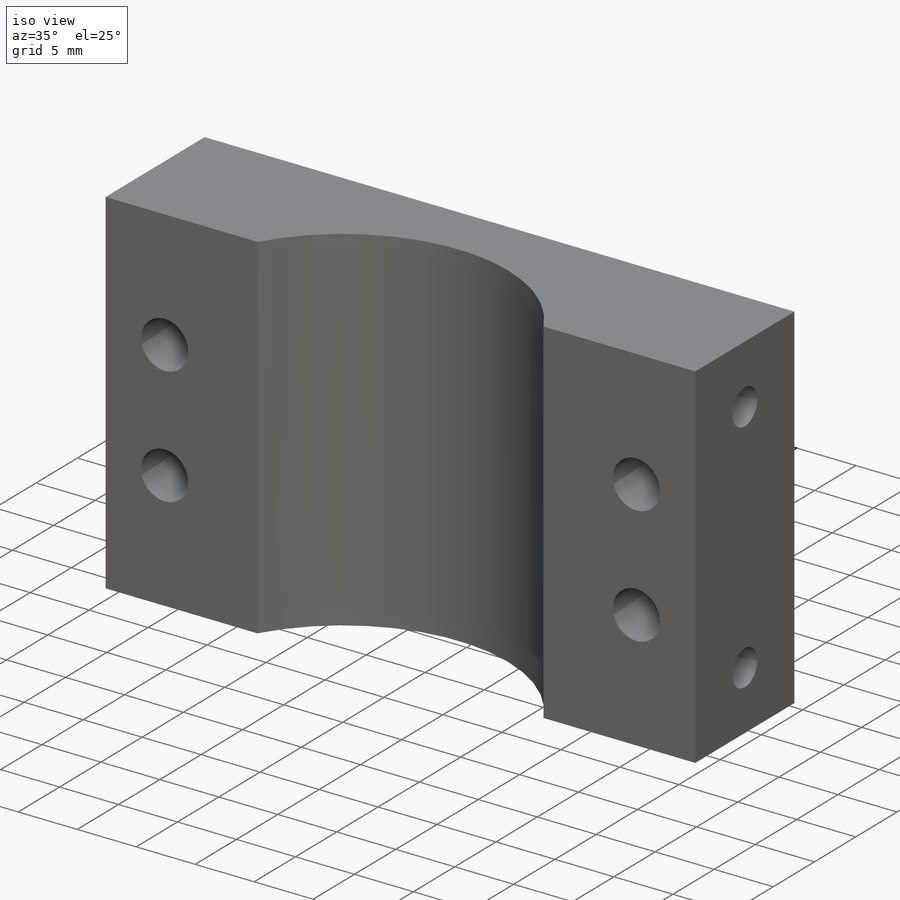
[diagram: iso view]
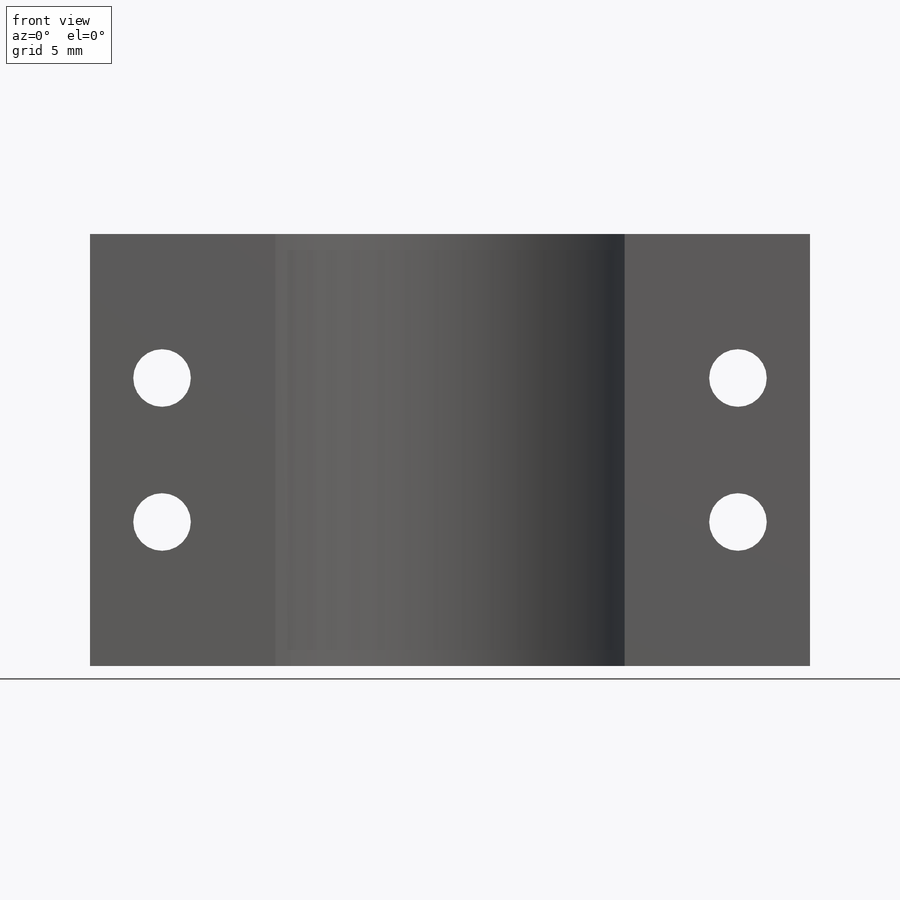
[diagram: front view]
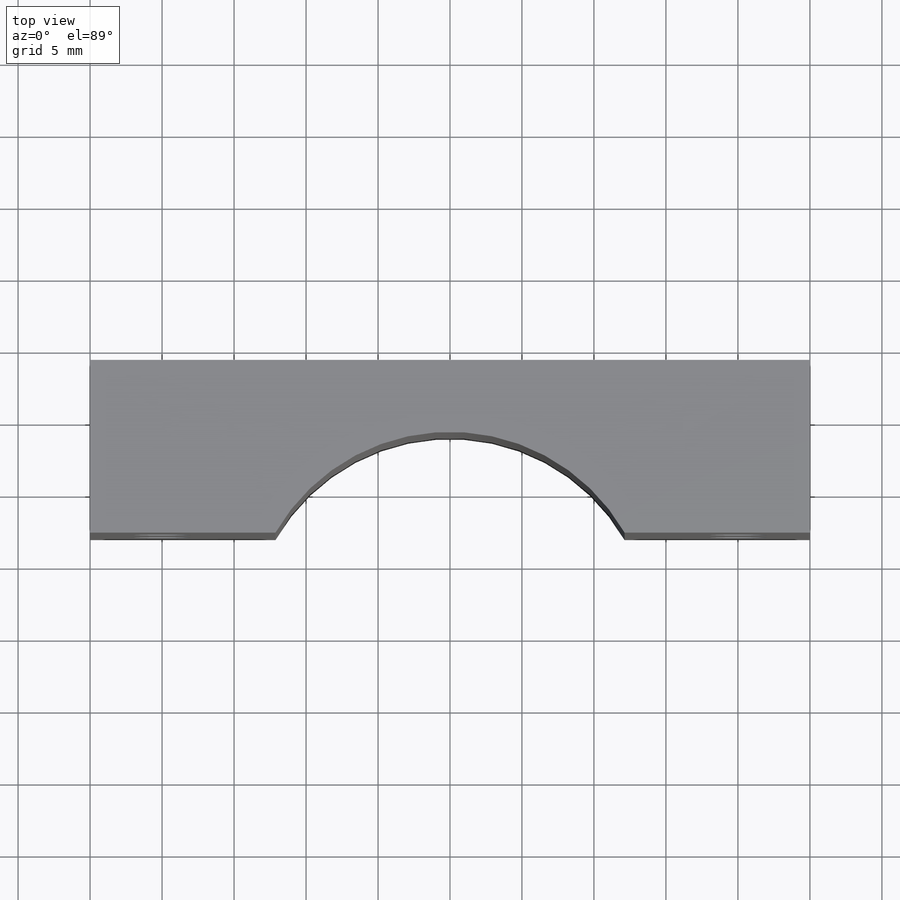
[diagram: top view]
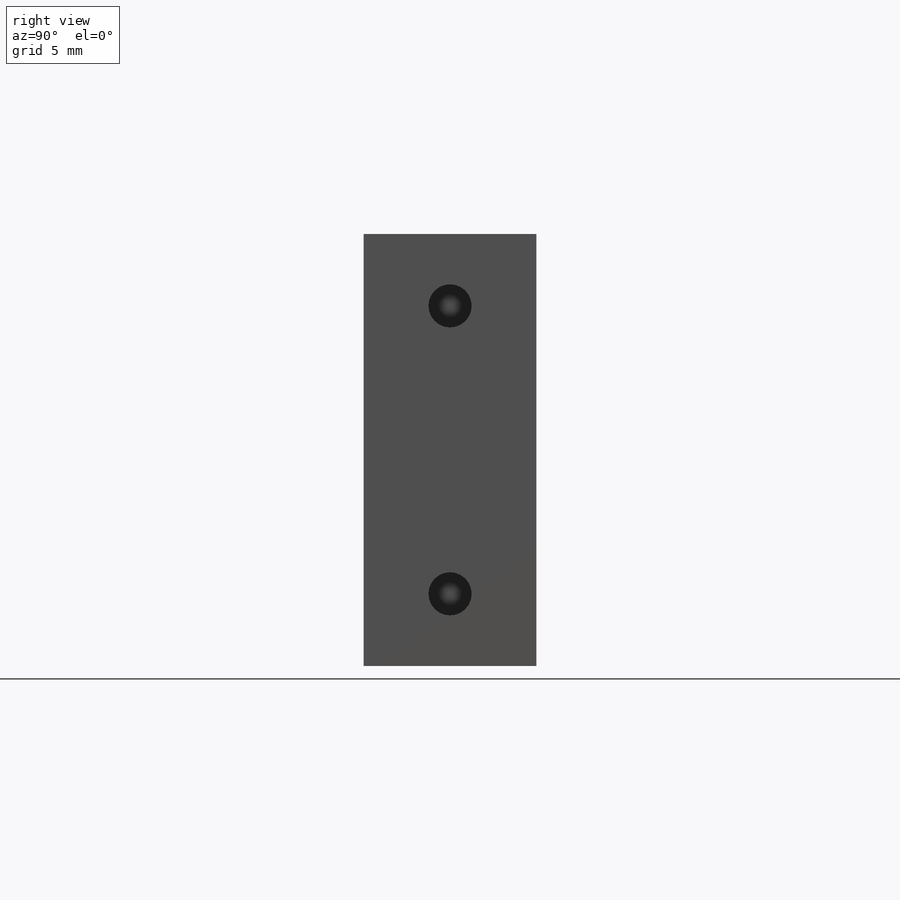
[diagram: right view]
SOLIDWORKS PART (.sldprt)
format: sldprt  version: not decoded by parser v0  size: 213,504 bytes
history: native  units: mm
features: sketch x5, plane x3, cut_extrude x3, extrude x2, material x1 (+9 scaffold rows collapsed)
feature tree (23):
  scaffold x9  (default folders/planes/origin — collapsed)
  material  "Matériau <non spécifié>"
  plane  "Plan de face"
  plane  "Plan de dessus"
  plane  "Plan de droite"
  sketch  "Esquisse1"  dims[c1.D1=14.0mm c1.D2=~11.379886mm c2.D2=~52.995526deg c2.D3=~19.039977mm c3.D3=53.0deg c3.D2=10.0mm c4.D3=~8.576308mm c5.D3=120.0deg c6.D3=7.0mm c6.D4=50.0mm c6.D2=5.0mm]
  extrude  "Boss.-Extru.3"  Depth=30mm
  extrude  "Boss.-Extru.4"  [1 undecoded]
  sketch  "Esquisse1<5>"  dims[D1=30.0mm]
  sketch  "Esquisse9"  dims[D3=3.0mm D1=20.0mm D2=5.0mm]
  sketch  "Esquisse10"
  cut_extrude  "Enlèv. mat.-Extru.1"  Depth=3mm
  cut_extrude  "Enlèv. mat.-Extru.2"  Depth=3mm
  sketch  "Esquisse11"  dims[D4=4.0mm D1=5.0mm D2=10.0mm D3=10.0mm]
  cut_extrude  "Enlèv. mat.-Extru.3"  [1 undecoded]
decode coverage: 7 of 10 modeling features carry decoded parameters
note: ~ marks probable driven/reference dimensions
note: 2 parameter values undecoded
note: suppression state not decoded; provenance and decode notes live in map.json
